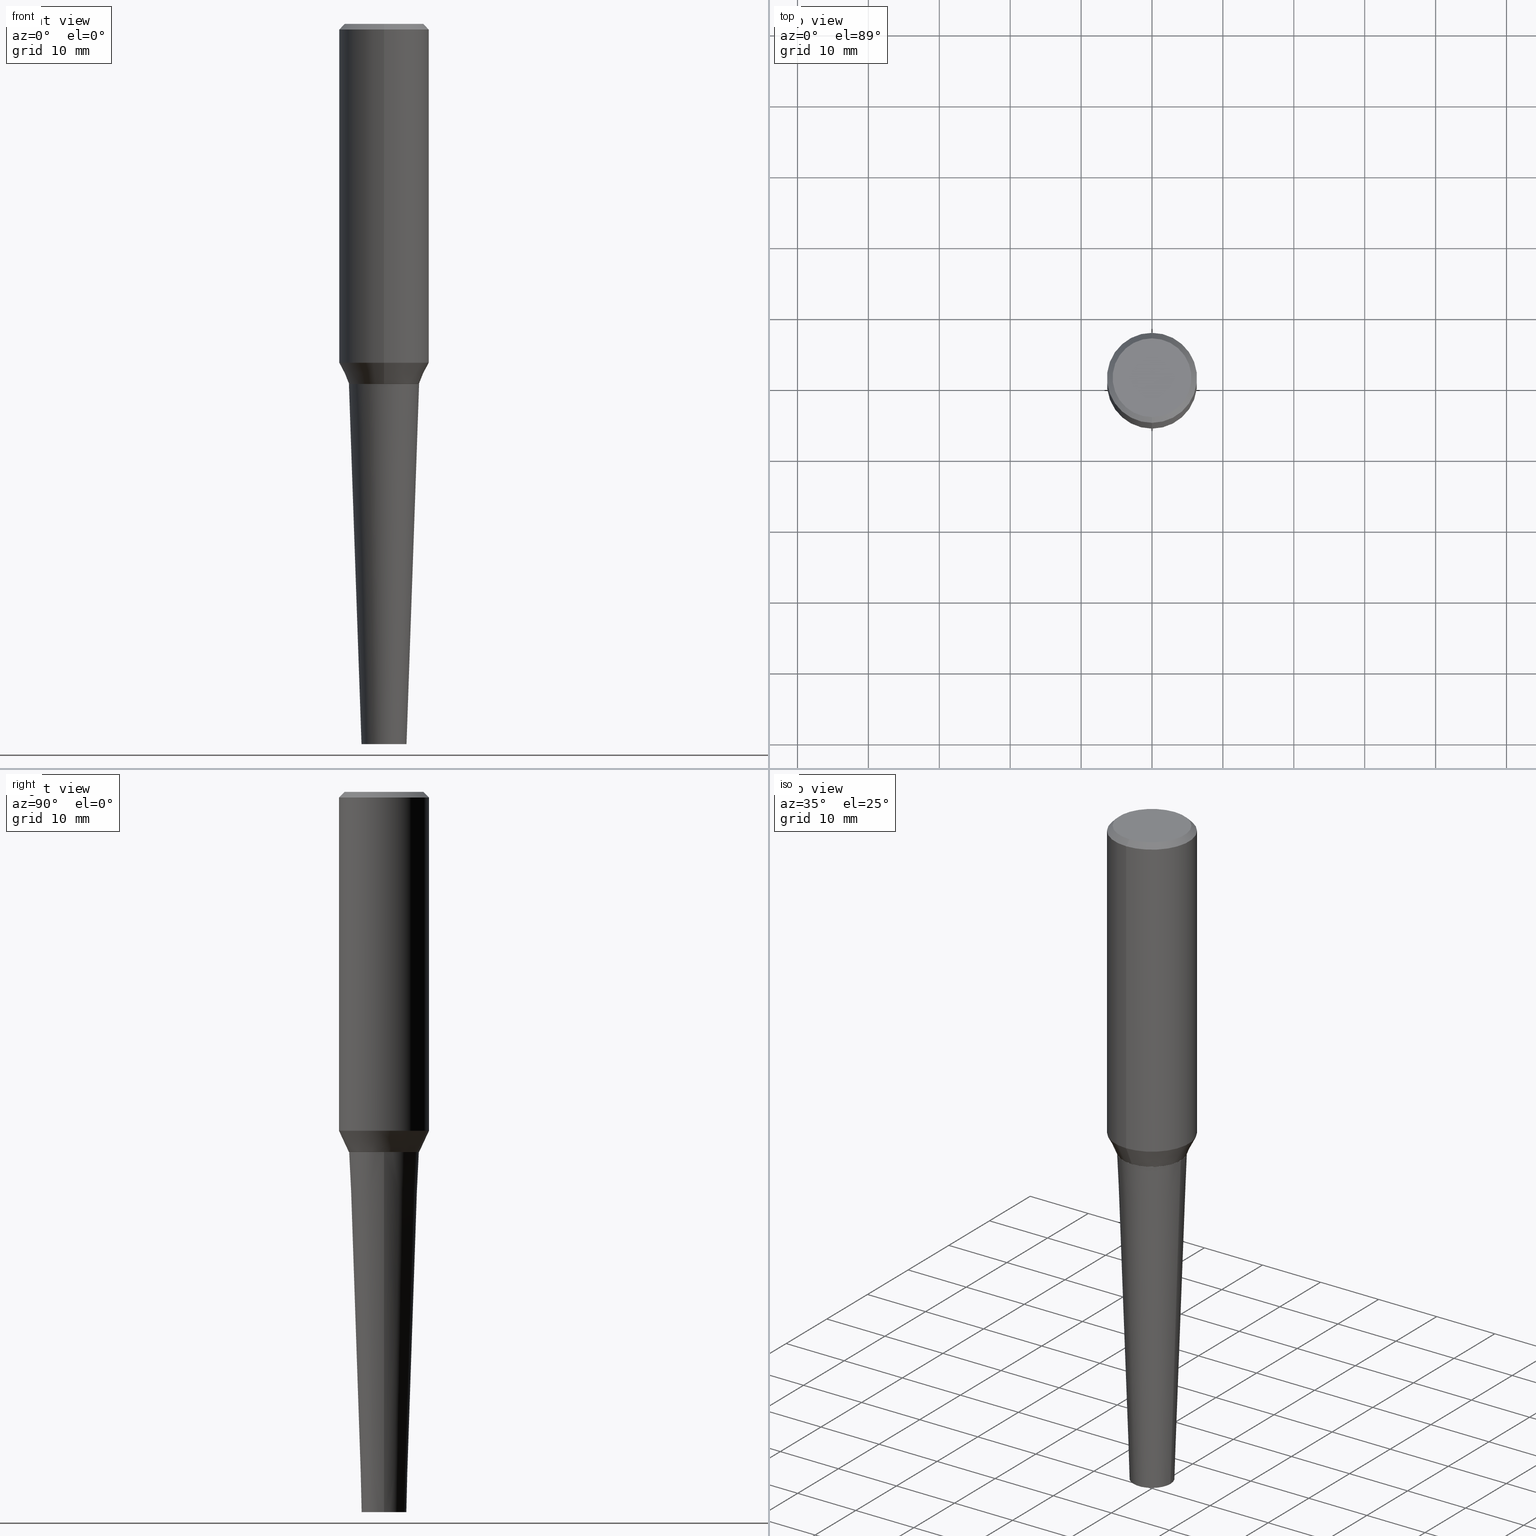
[diagram: canonical four-view strip — front | top / right | iso, engineering-drawing reading convention]
A machine part, canonical four-view strip (front | top / right | iso — engineering-drawing reading convention). The complete STEP part file that produces these views, byte-faithful:
ISO-10303-21;
HEADER;
FILE_DESCRIPTION (( 'STEP AP203' ),
    '1' );
FILE_NAME ('32334.STEP',
    '2024-03-04T15:07:34',
    ( '' ),
    ( '' ),
    'SwSTEP 2.0',
    'SolidWorks 2023',
    '' );
FILE_SCHEMA (( 'CONFIG_CONTROL_DESIGN' ));
ENDSEC;

DATA;
#1 = VERTEX_POINT ( 'NONE', #354 ) ;
#2 = DIRECTION ( 'NONE',  ( -6.982962677686265133E-15, -1.000000000000000000, 3.192847342595101412E-15 ) ) ;
#3 = DIRECTION ( 'NONE',  ( -6.982962677686265922E-15, -1.000000000000000000, 2.797900717145328369E-15 ) ) ;
#4 = ORIENTED_EDGE ( 'NONE', *, *, #226, .F. ) ;
#5 = AXIS2_PLACEMENT_3D ( 'NONE', #361, #141, #205 ) ;
#6 = CARTESIAN_POINT ( 'NONE',  ( 4.890937612370273194E-29, -6.982962677686291165E-15, -2.000000000000000000 ) ) ;
#7 = EDGE_CURVE ( 'NONE', #1, #223, #412, .T. ) ;
#8 = FACE_OUTER_BOUND ( 'NONE', #340, .T. ) ;
#9 = DIRECTION ( 'NONE',  ( -2.651392540956904653E-29, 3.196586830198859134E-15, 1.000000000000000000 ) ) ;
#10 = SECURITY_CLASSIFICATION ( '', '', #189 ) ;
#11 = PLANE ( 'NONE',  #324 ) ;
#12 =( CONVERSION_BASED_UNIT ( 'INCH', #35 ) LENGTH_UNIT ( ) NAMED_UNIT ( #233 ) );
#13 = ORIENTED_EDGE ( 'NONE', *, *, #400, .T. ) ;
#14 = EDGE_CURVE ( 'NONE', #368, #1, #36, .T. ) ;
#15 = CONICAL_SURFACE ( 'NONE', #127, 0.1250000000000000555, 0.03490658503987938838 ) ;
#16 = PERSON_AND_ORGANIZATION ( #87, #344 ) ;
#17 = EDGE_LOOP ( 'NONE', ( #163, #249 ) ) ;
#18 = APPROVAL ( #257, 'UNSPECIFIED' ) ;
#19 = ADVANCED_FACE ( 'NONE', ( #149 ), #254, .T. ) ;
#20 = PERSON_AND_ORGANIZATION ( #87, #344 ) ;
#21 = ORIENTED_EDGE ( 'NONE', *, *, #251, .T. ) ;
#22 = ADVANCED_FACE ( 'NONE', ( #90 ), #15, .T. ) ;
#23 = DIRECTION ( 'NONE',  ( -2.651392540956904653E-29, 3.196586830198859134E-15, 1.000000000000000000 ) ) ;
#24 = ORIENTED_EDGE ( 'NONE', *, *, #269, .F. ) ;
#25 = COORDINATED_UNIVERSAL_TIME_OFFSET ( 5, 0, .BEHIND. ) ;
#26 = CYLINDRICAL_SURFACE ( 'NONE', #170, 0.2500000000000002220 ) ;
#27 = EDGE_LOOP ( 'NONE', ( #252, #380, #158, #4 ) ) ;
#28 = CALENDAR_DATE ( 2024, 4, 3 ) ;
#29 = LINE ( 'NONE', #102, #58 ) ;
#30 = AXIS2_PLACEMENT_3D ( 'NONE', #111, #389, #73 ) ;
#31 = ORIENTED_EDGE ( 'NONE', *, *, #271, .T. ) ;
#32 = DIRECTION ( 'NONE',  ( -6.982962677686265922E-15, -1.000000000000000000, 3.196586830198859529E-15 ) ) ;
#33 = CARTESIAN_POINT ( 'NONE',  ( 1.360571194784651347E-15, 0.1948415389834741440, -2.000000000000000444 ) ) ;
#34 = ORIENTED_EDGE ( 'NONE', *, *, #7, .T. ) ;
#35 = LENGTH_MEASURE_WITH_UNIT ( LENGTH_MEASURE( 0.02539999999999999897 ), #144 );
#36 = LINE ( 'NONE', #360, #374 ) ;
#37 = CC_DESIGN_SECURITY_CLASSIFICATION ( #10, ( #38 ) ) ;
#38 = PRODUCT_DEFINITION_FORMATION_WITH_SPECIFIED_SOURCE ( 'ANY', '', #49, .NOT_KNOWN. ) ;
#39 = DIRECTION ( 'NONE',  ( 1.000000000000000000, -6.982962677686265922E-15, 0.000000000000000000 ) ) ;
#40 = CARTESIAN_POINT ( 'NONE',  ( 1.776356839400248295E-15, 0.2499999999999997224, -7.800228530168773250E-16 ) ) ;
#41 = CARTESIAN_POINT ( 'NONE',  ( -3.397982428467408395E-30, -4.866104238714468673E-16, 2.086207603607217046E-17 ) ) ;
#42 = CIRCLE ( 'NONE', #234, 0.1952784083383446168 ) ;
#43 = CONICAL_SURFACE ( 'NONE', #30, 0.2500000000000004996, 0.7853981633974466137 ) ;
#44 = PERSON_AND_ORGANIZATION ( #87, #344 ) ;
#45 = COORDINATED_UNIVERSAL_TIME_OFFSET ( 5, 0, .BEHIND. ) ;
#46 = CARTESIAN_POINT ( 'NONE',  ( 4.962986839067068957E-29, -6.879784084269165333E-15, -2.000000000000000000 ) ) ;
#47 = ADVANCED_FACE ( 'NONE', ( #402 ), #123, .T. ) ;
#48 = LOCAL_TIME ( 10, 7, 34.00000000000000000, #320 ) ;
#49 = PRODUCT ( '32334', '32334', '', ( #413 ) ) ;
#50 = APPROVAL_DATE_TIME ( #96, #18 ) ;
#51 = CARTESIAN_POINT ( 'NONE',  ( 4.962986839067068957E-29, -6.879784084269165333E-15, -2.000000000000000000 ) ) ;
#52 = VERTEX_POINT ( 'NONE', #339 ) ;
#53 = EDGE_CURVE ( 'NONE', #1, #68, #42, .T. ) ;
#54 = DIRECTION ( 'NONE',  ( -6.982962677686266711E-15, -1.000000000000000000, 2.811388659319477661E-15 ) ) ;
#55 = EDGE_LOOP ( 'NONE', ( #13, #88, #108, #342 ) ) ;
#56 = ADVANCED_FACE ( 'NONE', ( #175 ), #84, .T. ) ;
#57 = ORIENTED_EDGE ( 'NONE', *, *, #416, .T. ) ;
#58 = VECTOR ( 'NONE', #346, 39.37007874015748143 ) ;
#59 = AXIS2_PLACEMENT_3D ( 'NONE', #41, #169, #238 ) ;
#60 = DIRECTION ( 'NONE',  ( -2.651392540956904653E-29, 3.196586830198859134E-15, 1.000000000000000000 ) ) ;
#61 = ORIENTED_EDGE ( 'NONE', *, *, #258, .F. ) ;
#62 = CALENDAR_DATE ( 2024, 4, 3 ) ;
#63 = LINE ( 'NONE', #190, #290 ) ;
#64 = PERSON_AND_ORGANIZATION_ROLE ( 'creator' ) ;
#65 = DIRECTION ( 'NONE',  ( -6.982962677686265922E-15, -1.000000000000000000, 3.278217592397117045E-15 ) ) ;
#66 = DIRECTION ( 'NONE',  ( -2.651392540956904092E-29, 3.196586830198859529E-15, 1.000000000000000000 ) ) ;
#67 = CC_DESIGN_APPROVAL ( #18, ( #105 ) ) ;
#68 = VERTEX_POINT ( 'NONE', #182 ) ;
#69 = DIRECTION ( 'NONE',  ( -2.651392540956904653E-29, 3.196586830198859134E-15, 1.000000000000000000 ) ) ;
#70 = EDGE_LOOP ( 'NONE', ( #268, #406, #294, #323 ) ) ;
#71 = FACE_OUTER_BOUND ( 'NONE', #245, .T. ) ;
#72 = DIRECTION ( 'NONE',  ( -2.651392540956904653E-29, 3.196586830198859134E-15, 1.000000000000000000 ) ) ;
#73 = DIRECTION ( 'NONE',  ( 6.982962677686265133E-15, 1.000000000000000000, -3.192847342595101412E-15 ) ) ;
#74 = FACE_OUTER_BOUND ( 'NONE', #98, .T. ) ;
#75 = CC_DESIGN_PERSON_AND_ORGANIZATION_ASSIGNMENT ( #44, #64, ( #105 ) ) ;
#76 = DIRECTION ( 'NONE',  ( 1.000000000000000000, -6.982962677686275388E-15, 0.000000000000000000 ) ) ;
#77 = AXIS2_PLACEMENT_3D ( 'NONE', #264, #316, #295 ) ;
#78 = UNCERTAINTY_MEASURE_WITH_UNIT (LENGTH_MEASURE( 1.000000000000000082E-05 ), #12, 'distance_accuracy_value', 'NONE');
#79 = PERSON_AND_ORGANIZATION ( #87, #344 ) ;
#80 = DIRECTION ( 'NONE',  ( 1.000000000000000000, -6.982962677686275388E-15, 0.000000000000000000 ) ) ;
#81 = ORIENTED_EDGE ( 'NONE', *, *, #14, .T. ) ;
#82 = CARTESIAN_POINT ( 'NONE',  ( 4.960502830647732035E-29, -6.876789300027791959E-15, -1.999063130645136521 ) ) ;
#83 = ORIENTED_EDGE ( 'NONE', *, *, #166, .T. ) ;
#84 = CONICAL_SURFACE ( 'NONE', #241, 0.1943415389834809992, 0.7853981633975030130 ) ;
#85 = AXIS2_PLACEMENT_3D ( 'NONE', #274, #9, #114 ) ;
#86 = DIRECTION ( 'NONE',  ( 2.438088387897960049E-29, -3.491481338843145188E-15, -1.000000000000000000 ) ) ;
#87 = PERSON ( 'UNSPECIFIED', 'UNSPECIFIED', 'UNSPECIFIED', ('UNSPECIFIED'), ('UNSPECIFIED'), ('UNSPECIFIED') ) ;
#88 = ORIENTED_EDGE ( 'NONE', *, *, #168, .T. ) ;
#89 = ORIENTED_EDGE ( 'NONE', *, *, #168, .F. ) ;
#90 = FACE_OUTER_BOUND ( 'NONE', #153, .T. ) ;
#91 = VERTEX_POINT ( 'NONE', #312 ) ;
#92 = PERSON_AND_ORGANIZATION ( #87, #344 ) ;
#93 = AXIS2_PLACEMENT_3D ( 'NONE', #200, #72, #140 ) ;
#94 = FACE_OUTER_BOUND ( 'NONE', #100, .T. ) ;
#95 = VERTEX_POINT ( 'NONE', #97 ) ;
#96 = DATE_AND_TIME ( #211, #137 ) ;
#97 = CARTESIAN_POINT ( 'NONE',  ( 1.384208116383829866E-15, 0.1943415389834741436, -2.000000000000000444 ) ) ;
#98 = EDGE_LOOP ( 'NONE', ( #307, #298 ) ) ;
#99 = PLANE ( 'NONE',  #164 ) ;
#100 = EDGE_LOOP ( 'NONE', ( #216, #399 ) ) ;
#101 = AXIS2_PLACEMENT_3D ( 'NONE', #372, #86, #367 ) ;
#102 = CARTESIAN_POINT ( 'NONE',  ( -0.1250000000000000555, -1.307774693567245552E-14, -4.000000000000000000 ) ) ;
#103 = AXIS2_PLACEMENT_3D ( 'NONE', #6, #236, #278 ) ;
#104 = ORIENTED_EDGE ( 'NONE', *, *, #7, .F. ) ;
#105 = PRODUCT_DEFINITION ( 'UNKNOWN', '', #38, #275 ) ;
#106 = EDGE_CURVE ( 'NONE', #223, #124, #134, .T. ) ;
#107 = DIRECTION ( 'NONE',  ( 6.982962677686265133E-15, 1.000000000000000000, -3.192847342595101412E-15 ) ) ;
#108 = ORIENTED_EDGE ( 'NONE', *, *, #53, .F. ) ;
#109 = MANIFOLD_SOLID_BREP ( 'Body-Move/Copy2[1]', #357 ) ;
#110 = DIRECTION ( 'NONE',  ( -2.445468806185136597E-29, 3.491481338843145583E-15, 1.000000000000000000 ) ) ;
#111 = CARTESIAN_POINT ( 'NONE',  ( -2.569422259418371487E-30, -5.865037623151615850E-16, -0.03125000000000012490 ) ) ;
#112 = AXIS2_PLACEMENT_3D ( 'NONE', #410, #375, #327 ) ;
#113 = AXIS2_PLACEMENT_3D ( 'NONE', #355, #204, #39 ) ;
#114 = DIRECTION ( 'NONE',  ( -6.982962677686266711E-15, -1.000000000000000000, 2.811388659319477661E-15 ) ) ;
#115 = EDGE_CURVE ( 'NONE', #386, #191, #201, .T. ) ;
#116 = FACE_OUTER_BOUND ( 'NONE', #199, .T. ) ;
#117 = CARTESIAN_POINT ( 'NONE',  ( 0.000000000000000000, 0.000000000000000000, 0.000000000000000000 ) ) ;
#118 = APPROVAL_ROLE ( '' ) ;
#119 = DIRECTION ( 'NONE',  ( -2.445468806185136597E-29, 3.491481338843145583E-15, 1.000000000000000000 ) ) ;
#120 = ADVANCED_FACE ( 'NONE', ( #94 ), #387, .F. ) ;
#121 = ORIENTED_EDGE ( 'NONE', *, *, #226, .T. ) ;
#122 = CONICAL_SURFACE ( 'NONE', #5, 0.1250000000000000555, 0.03490658503987938838 ) ;
#123 = PLANE ( 'NONE',  #101 ) ;
#124 = VERTEX_POINT ( 'NONE', #198 ) ;
#125 = DIRECTION ( 'NONE',  ( -2.651392540956904653E-29, 3.196586830198859134E-15, 1.000000000000000000 ) ) ;
#126 = PRODUCT_DEFINITION_SHAPE ( 'NONE', 'NONE',  #105 ) ;
#127 = AXIS2_PLACEMENT_3D ( 'NONE', #407, #119, #80 ) ;
#128 = CC_DESIGN_DATE_AND_TIME_ASSIGNMENT ( #409, #145, ( #10 ) ) ;
#129 =( GEOMETRIC_REPRESENTATION_CONTEXT ( 3 ) GLOBAL_UNCERTAINTY_ASSIGNED_CONTEXT ( ( #78 ) ) GLOBAL_UNIT_ASSIGNED_CONTEXT ( ( #12, #288, #308 ) ) REPRESENTATION_CONTEXT ( 'NONE', 'WORKASPACE' ) );
#130 = CYLINDRICAL_SURFACE ( 'NONE', #112, 0.2500000000000002220 ) ;
#131 = CARTESIAN_POINT ( 'NONE',  ( -2.569422259418371487E-30, -5.865037623151615850E-16, -0.03125000000000012490 ) ) ;
#132 = EDGE_LOOP ( 'NONE', ( #403, #347 ) ) ;
#133 = EDGE_CURVE ( 'NONE', #287, #223, #194, .T. ) ;
#134 = LINE ( 'NONE', #321, #155 ) ;
#135 = ADVANCED_FACE ( 'NONE', ( #384 ), #130, .T. ) ;
#136 = LINE ( 'NONE', #353, #142 ) ;
#137 = LOCAL_TIME ( 10, 7, 34.00000000000000000, #25 ) ;
#138 = LINE ( 'NONE', #165, #214 ) ;
#139 = APPLICATION_CONTEXT ( 'configuration controlled 3d designs of mechanical parts and assemblies' ) ;
#140 = DIRECTION ( 'NONE',  ( -6.982962677686265922E-15, -1.000000000000000000, 2.797900717145328369E-15 ) ) ;
#141 = DIRECTION ( 'NONE',  ( -2.445468806185136597E-29, 3.491481338843145583E-15, 1.000000000000000000 ) ) ;
#142 = VECTOR ( 'NONE', #260, 39.37007874015748854 ) ;
#143 = DIRECTION ( 'NONE',  ( 2.651392540956904092E-29, -3.196586830198859529E-15, -1.000000000000000000 ) ) ;
#144 =( LENGTH_UNIT ( ) NAMED_UNIT ( * ) SI_UNIT ( $, .METRE. ) );
#145 = DATE_TIME_ROLE ( 'classification_date' ) ;
#146 = PERSON_AND_ORGANIZATION_ROLE ( 'design_supplier' ) ;
#147 = CC_DESIGN_PERSON_AND_ORGANIZATION_ASSIGNMENT ( #79, #146, ( #38 ) ) ;
#148 = CONICAL_SURFACE ( 'NONE', #396, 0.2500000000000004996, 0.7853981633974466137 ) ;
#149 = FACE_OUTER_BOUND ( 'NONE', #255, .T. ) ;
#150 = ORIENTED_EDGE ( 'NONE', *, *, #133, .F. ) ;
#151 = DIRECTION ( 'NONE',  ( -6.982962677686265133E-15, -1.000000000000000000, 3.192847342595101412E-15 ) ) ;
#152 = FACE_OUTER_BOUND ( 'NONE', #70, .T. ) ;
#153 = EDGE_LOOP ( 'NONE', ( #161, #31, #227, #366 ) ) ;
#154 = APPROVAL_ROLE ( '' ) ;
#155 = VECTOR ( 'NONE', #222, 39.37007874015748143 ) ;
#156 = APPLICATION_CONTEXT ( 'configuration controlled 3d designs of mechanical parts and assemblies' ) ;
#157 = DIRECTION ( 'NONE',  ( 5.024295867788335336E-15, 0.7071067811865884289, 0.7071067811865066055 ) ) ;
#158 = ORIENTED_EDGE ( 'NONE', *, *, #258, .T. ) ;
#159 = ADVANCED_BREP_SHAPE_REPRESENTATION ( '32334', ( #109, #244, #358 ), #129 ) ;
#160 = CARTESIAN_POINT ( 'NONE',  ( 4.649359709955567385E-29, -6.501667175880684624E-15, -1.881712298625419111 ) ) ;
#161 = ORIENTED_EDGE ( 'NONE', *, *, #166, .F. ) ;
#162 = DIRECTION ( 'NONE',  ( -2.651392540956904653E-29, 3.196586830198859134E-15, 1.000000000000000000 ) ) ;
#163 = ORIENTED_EDGE ( 'NONE', *, *, #416, .F. ) ;
#164 = AXIS2_PLACEMENT_3D ( 'NONE', #350, #66, #32 ) ;
#165 = CARTESIAN_POINT ( 'NONE',  ( 0.1250000000000000555, -1.483879569008336725E-14, -4.000000000000000000 ) ) ;
#166 = EDGE_CURVE ( 'NONE', #52, #265, #29, .T. ) ;
#167 = CARTESIAN_POINT ( 'NONE',  ( 4.962986839067068957E-29, -6.879784084269165333E-15, -2.000000000000000000 ) ) ;
#168 = EDGE_CURVE ( 'NONE', #95, #68, #63, .T. ) ;
#169 = DIRECTION ( 'NONE',  ( -2.651392540956904653E-29, 3.196586830198859134E-15, 1.000000000000000000 ) ) ;
#170 = AXIS2_PLACEMENT_3D ( 'NONE', #218, #415, #325 ) ;
#171 = APPROVAL_PERSON_ORGANIZATION ( #92, #371, #118 ) ;
#172 = EDGE_CURVE ( 'NONE', #181, #124, #212, .T. ) ;
#173 = DIRECTION ( 'NONE',  ( -2.445468806185136597E-29, 3.491481338843145583E-15, 1.000000000000000000 ) ) ;
#174 = APPROVAL_DATE_TIME ( #243, #371 ) ;
#175 = FACE_OUTER_BOUND ( 'NONE', #55, .T. ) ;
#176 = CALENDAR_DATE ( 2024, 4, 3 ) ;
#177 = DIRECTION ( 'NONE',  ( -6.982962677686266711E-15, -1.000000000000000000, 2.811388659319477661E-15 ) ) ;
#178 = LOCAL_TIME ( 10, 7, 34.00000000000000000, #310 ) ;
#179 = DATE_TIME_ROLE ( 'creation_date' ) ;
#180 = DIRECTION ( 'NONE',  ( -2.651392540956904653E-29, 3.196586830198859134E-15, 1.000000000000000000 ) ) ;
#181 = VERTEX_POINT ( 'NONE', #230 ) ;
#182 = CARTESIAN_POINT ( 'NONE',  ( 1.387536544956102545E-15, 0.1952784083383376779, -1.999063130645136965 ) ) ;
#183 = ORIENTED_EDGE ( 'NONE', *, *, #106, .F. ) ;
#184 = VECTOR ( 'NONE', #188, 39.37007874015748143 ) ;
#185 = CIRCLE ( 'NONE', #77, 0.1952784083383446168 ) ;
#186 = CC_DESIGN_PERSON_AND_ORGANIZATION_ASSIGNMENT ( #20, #365, ( #38 ) ) ;
#187 = DIRECTION ( 'NONE',  ( -1.000000000000000000, 6.982962677686265922E-15, -4.876176775795935793E-29 ) ) ;
#188 = DIRECTION ( 'NONE',  ( -2.951127548643988277E-15, -0.4226182617406985531, 0.9063077870366502697 ) ) ;
#189 = SECURITY_CLASSIFICATION_LEVEL ( 'unclassified' ) ;
#190 = CARTESIAN_POINT ( 'NONE',  ( 1.380879687811556990E-15, 0.1943415389834741436, -2.000000000000000444 ) ) ;
#191 = VERTEX_POINT ( 'NONE', #253 ) ;
#192 = PERSON_AND_ORGANIZATION_ROLE ( 'classification_officer' ) ;
#193 = DIRECTION ( 'NONE',  ( -6.982962677686265133E-15, -1.000000000000000000, 3.196586830198859134E-15 ) ) ;
#194 = CIRCLE ( 'NONE', #414, 0.2499999999999999167 ) ;
#195 = CIRCLE ( 'NONE', #314, 0.1250000000000000555 ) ;
#196 = CARTESIAN_POINT ( 'NONE',  ( -3.397982428467408395E-30, -4.866104238714468673E-16, 2.086207603607217046E-17 ) ) ;
#197 = CC_DESIGN_PERSON_AND_ORGANIZATION_ASSIGNMENT ( #246, #348, ( #49 ) ) ;
#198 = CARTESIAN_POINT ( 'NONE',  ( -1.715124499442888610E-15, -0.2500000000000010547, -0.03124999999999933040 ) ) ;
#199 = EDGE_LOOP ( 'NONE', ( #57, #83, #317, #383 ) ) ;
#200 = CARTESIAN_POINT ( 'NONE',  ( 4.960502830647732035E-29, -6.876789300027791959E-15, -1.999063130645136521 ) ) ;
#201 = CIRCLE ( 'NONE', #390, 0.2187500000000004441 ) ;
#202 = AXIS2_PLACEMENT_3D ( 'NONE', #362, #173, #76 ) ;
#203 = LINE ( 'NONE', #301, #376 ) ;
#204 = DIRECTION ( 'NONE',  ( -2.445468806185136597E-29, 3.491481338843145583E-15, 1.000000000000000000 ) ) ;
#205 = DIRECTION ( 'NONE',  ( 1.000000000000000000, -6.982962677686275388E-15, 0.000000000000000000 ) ) ;
#206 = DIRECTION ( 'NONE',  ( 2.651392540956904653E-29, -3.196586830198859134E-15, -1.000000000000000000 ) ) ;
#207 = CIRCLE ( 'NONE', #299, 0.2500000000000004996 ) ;
#208 = APPLICATION_PROTOCOL_DEFINITION ( 'international standard', 'config_control_design', 1994, #156 ) ;
#209 = PERSON_AND_ORGANIZATION ( #87, #344 ) ;
#210 = ORIENTED_EDGE ( 'NONE', *, *, #213, .T. ) ;
#211 = CALENDAR_DATE ( 2024, 4, 3 ) ;
#212 = CIRCLE ( 'NONE', #322, 0.2500000000000004996 ) ;
#213 = EDGE_CURVE ( 'NONE', #68, #287, #136, .T. ) ;
#214 = VECTOR ( 'NONE', #270, 39.37007874015748143 ) ;
#215 = ORIENTED_EDGE ( 'NONE', *, *, #405, .T. ) ;
#216 = ORIENTED_EDGE ( 'NONE', *, *, #304, .T. ) ;
#217 = CC_DESIGN_PERSON_AND_ORGANIZATION_ASSIGNMENT ( #16, #192, ( #10 ) ) ;
#218 = CARTESIAN_POINT ( 'NONE',  ( -3.397982428467408395E-30, -4.866104238714468673E-16, 1.912385453283800096E-17 ) ) ;
#219 = LOCAL_TIME ( 10, 7, 34.00000000000000000, #45 ) ;
#220 = APPROVAL_PERSON_ORGANIZATION ( #279, #18, #378 ) ;
#221 = APPROVAL_STATUS ( 'not_yet_approved' ) ;
#222 = DIRECTION ( 'NONE',  ( -2.651392540956904653E-29, 3.196586830198859529E-15, 1.000000000000000000 ) ) ;
#223 = VERTEX_POINT ( 'NONE', #379 ) ;
#224 = DIRECTION ( 'NONE',  ( -6.982962677686265922E-15, -1.000000000000000000, 3.278217592397117045E-15 ) ) ;
#225 = LINE ( 'NONE', #293, #385 ) ;
#226 = EDGE_CURVE ( 'NONE', #191, #181, #225, .T. ) ;
#227 = ORIENTED_EDGE ( 'NONE', *, *, #335, .T. ) ;
#228 = AXIS2_PLACEMENT_3D ( 'NONE', #46, #370, #177 ) ;
#229 = AXIS2_PLACEMENT_3D ( 'NONE', #262, #69, #3 ) ;
#230 = CARTESIAN_POINT ( 'NONE',  ( 1.745740669421567269E-15, 0.2499999999999998890, -0.03125000000000092287 ) ) ;
#231 = ADVANCED_FACE ( 'NONE', ( #152 ), #26, .T. ) ;
#232 = CARTESIAN_POINT ( 'NONE',  ( 1.776356839400272947E-15, 0.2499999999999934497, -1.881712298625419999 ) ) ;
#233 = DIMENSIONAL_EXPONENTS ( 1.000000000000000000, 0.000000000000000000, 0.000000000000000000, 0.000000000000000000, 0.000000000000000000, 0.000000000000000000, 0.000000000000000000 ) ;
#234 = AXIS2_PLACEMENT_3D ( 'NONE', #82, #281, #250 ) ;
#235 = LOCAL_TIME ( 10, 7, 34.00000000000000000, #397 ) ;
#236 = DIRECTION ( 'NONE',  ( -2.445468806185136597E-29, 3.491481338843145583E-15, 1.000000000000000000 ) ) ;
#237 = DIRECTION ( 'NONE',  ( -2.651392540956904653E-29, 3.196586830198859529E-15, 1.000000000000000000 ) ) ;
#238 = DIRECTION ( 'NONE',  ( -6.982962677686265133E-15, -1.000000000000000000, 3.196586830198859134E-15 ) ) ;
#239 = CC_DESIGN_DATE_AND_TIME_ASSIGNMENT ( #318, #179, ( #105 ) ) ;
#240 = APPROVAL_DATE_TIME ( #395, #331 ) ;
#241 = AXIS2_PLACEMENT_3D ( 'NONE', #51, #180, #54 ) ;
#242 = AXIS2_PLACEMENT_3D ( 'NONE', #167, #276, #303 ) ;
#243 = DATE_AND_TIME ( #62, #178 ) ;
#244 = MANIFOLD_SOLID_BREP ( 'Body-Move/Copy2[2]', #369 ) ;
#245 = EDGE_LOOP ( 'NONE', ( #311, #404, #121, #247 ) ) ;
#246 = PERSON_AND_ORGANIZATION ( #87, #344 ) ;
#247 = ORIENTED_EDGE ( 'NONE', *, *, #172, .T. ) ;
#248 = APPROVAL_PERSON_ORGANIZATION ( #209, #331, #154 ) ;
#249 = ORIENTED_EDGE ( 'NONE', *, *, #271, .F. ) ;
#250 = DIRECTION ( 'NONE',  ( -6.982962677686265922E-15, -1.000000000000000000, 2.797900717145328369E-15 ) ) ;
#251 = EDGE_CURVE ( 'NONE', #223, #287, #351, .T. ) ;
#252 = ORIENTED_EDGE ( 'NONE', *, *, #115, .F. ) ;
#253 = CARTESIAN_POINT ( 'NONE',  ( 1.636631877582718760E-15, 0.2187499999999999445, -6.783912930699296488E-16 ) ) ;
#254 = CONICAL_SURFACE ( 'NONE', #228, 0.1943415389834809992, 0.7853981633975030130 ) ;
#255 = EDGE_LOOP ( 'NONE', ( #89, #215, #81, #24 ) ) ;
#256 = CIRCLE ( 'NONE', #85, 0.1943415389834809992 ) ;
#257 = APPROVAL_STATUS ( 'not_yet_approved' ) ;
#258 = EDGE_CURVE ( 'NONE', #124, #181, #207, .T. ) ;
#259 = ADVANCED_FACE ( 'NONE', ( #297 ), #328, .T. ) ;
#260 = DIRECTION ( 'NONE',  ( 3.002883358794135962E-15, 0.4226182617407042708, 0.9063077870366476052 ) ) ;
#261 = ADVANCED_FACE ( 'NONE', ( #382 ), #99, .F. ) ;
#262 = CARTESIAN_POINT ( 'NONE',  ( 4.960502830647732035E-29, -6.876789300027791959E-15, -1.999063130645136521 ) ) ;
#263 = ORIENTED_EDGE ( 'NONE', *, *, #53, .T. ) ;
#264 = CARTESIAN_POINT ( 'NONE',  ( 4.960502830647732035E-29, -6.876789300027791959E-15, -1.999063130645136521 ) ) ;
#265 = VERTEX_POINT ( 'NONE', #267 ) ;
#266 = CIRCLE ( 'NONE', #202, 0.1250000000000000555 ) ;
#267 = CARTESIAN_POINT ( 'NONE',  ( -0.1948415389834811107, -5.598530276195981594E-15, -2.000000000000000000 ) ) ;
#268 = ORIENTED_EDGE ( 'NONE', *, *, #394, .F. ) ;
#269 = EDGE_CURVE ( 'NONE', #68, #1, #185, .T. ) ;
#270 = DIRECTION ( 'NONE',  ( 0.03489949670249377356, 3.245652539804642670E-15, 0.9993908270190959842 ) ) ;
#271 = EDGE_CURVE ( 'NONE', #52, #373, #195, .T. ) ;
#272 = CARTESIAN_POINT ( 'NONE',  ( -2.569422259418371487E-30, -5.865037623151615850E-16, -0.03125000000000012490 ) ) ;
#273 = CIRCLE ( 'NONE', #242, 0.1943415389834809992 ) ;
#274 = CARTESIAN_POINT ( 'NONE',  ( 4.962986839067068957E-29, -6.879784084269165333E-15, -2.000000000000000000 ) ) ;
#275 = DESIGN_CONTEXT ( 'detailed design', #156, 'design' ) ;
#276 = DIRECTION ( 'NONE',  ( -2.651392540956904653E-29, 3.196586830198859134E-15, 1.000000000000000000 ) ) ;
#277 = ADVANCED_FACE ( 'NONE', ( #8 ), #300, .T. ) ;
#278 = DIRECTION ( 'NONE',  ( 1.000000000000000000, -6.982962677686265922E-15, 0.000000000000000000 ) ) ;
#279 = PERSON_AND_ORGANIZATION ( #87, #344 ) ;
#280 = APPLICATION_PROTOCOL_DEFINITION ( 'international standard', 'config_control_design', 1994, #139 ) ;
#281 = DIRECTION ( 'NONE',  ( -2.651392540956904653E-29, 3.196586830198859134E-15, 1.000000000000000000 ) ) ;
#282 = AXIS2_PLACEMENT_3D ( 'NONE', #349, #23, #65 ) ;
#283 = CIRCLE ( 'NONE', #59, 0.2187500000000004441 ) ;
#284 = EDGE_LOOP ( 'NONE', ( #263, #210, #352, #104 ) ) ;
#285 = ORIENTED_EDGE ( 'NONE', *, *, #394, .T. ) ;
#286 = DIRECTION ( 'NONE',  ( 2.438088387897960049E-29, -3.491481338843145188E-15, -1.000000000000000000 ) ) ;
#287 = VERTEX_POINT ( 'NONE', #232 ) ;
#288 =( NAMED_UNIT ( * ) PLANE_ANGLE_UNIT ( ) SI_UNIT ( $, .RADIAN. ) );
#289 = DIRECTION ( 'NONE',  ( -2.651392540956904653E-29, 3.196586830198859134E-15, 1.000000000000000000 ) ) ;
#290 = VECTOR ( 'NONE', #157, 39.37007874015748143 ) ;
#291 = CC_DESIGN_APPROVAL ( #331, ( #10 ) ) ;
#292 = ADVANCED_FACE ( 'NONE', ( #302 ), #148, .T. ) ;
#293 = CARTESIAN_POINT ( 'NONE',  ( 1.745740669421567269E-15, 0.2499999999999998890, -0.03125000000000092287 ) ) ;
#294 = ORIENTED_EDGE ( 'NONE', *, *, #106, .T. ) ;
#295 = DIRECTION ( 'NONE',  ( -6.982962677686265922E-15, -1.000000000000000000, 2.797900717145328369E-15 ) ) ;
#296 = ADVANCED_FACE ( 'NONE', ( #71 ), #43, .T. ) ;
#297 = FACE_OUTER_BOUND ( 'NONE', #284, .T. ) ;
#298 = ORIENTED_EDGE ( 'NONE', *, *, #115, .T. ) ;
#299 = AXIS2_PLACEMENT_3D ( 'NONE', #131, #162, #2 ) ;
#300 = CONICAL_SURFACE ( 'NONE', #93, 0.1952784083383446168, 0.4363323129985846038 ) ;
#301 = CARTESIAN_POINT ( 'NONE',  ( -1.715124499442888610E-15, -0.2500000000000010547, -0.03124999999999933040 ) ) ;
#302 = FACE_OUTER_BOUND ( 'NONE', #27, .T. ) ;
#303 = DIRECTION ( 'NONE',  ( -6.982962677686266711E-15, -1.000000000000000000, 2.811388659319477661E-15 ) ) ;
#304 = EDGE_CURVE ( 'NONE', #91, #265, #364, .T. ) ;
#305 = CC_DESIGN_APPROVAL ( #371, ( #38 ) ) ;
#306 = LINE ( 'NONE', #40, #309 ) ;
#307 = ORIENTED_EDGE ( 'NONE', *, *, #411, .T. ) ;
#308 =( NAMED_UNIT ( * ) SI_UNIT ( $, .STERADIAN. ) SOLID_ANGLE_UNIT ( ) );
#309 = VECTOR ( 'NONE', #237, 39.37007874015748143 ) ;
#310 = COORDINATED_UNIVERSAL_TIME_OFFSET ( 5, 0, .BEHIND. ) ;
#311 = ORIENTED_EDGE ( 'NONE', *, *, #313, .F. ) ;
#312 = CARTESIAN_POINT ( 'NONE',  ( 0.1948415389834811107, -8.343533872470893997E-15, -2.000000000000000000 ) ) ;
#313 = EDGE_CURVE ( 'NONE', #386, #124, #203, .T. ) ;
#314 = AXIS2_PLACEMENT_3D ( 'NONE', #388, #110, #332 ) ;
#315 = EDGE_LOOP ( 'NONE', ( #21, #285, #61, #183 ) ) ;
#316 = DIRECTION ( 'NONE',  ( -2.651392540956904653E-29, 3.196586830198859134E-15, 1.000000000000000000 ) ) ;
#317 = ORIENTED_EDGE ( 'NONE', *, *, #304, .F. ) ;
#318 = DATE_AND_TIME ( #176, #235 ) ;
#319 = DIRECTION ( 'NONE',  ( 4.937700262164540154E-15, 0.7071067811865440200, -0.7071067811865509034 ) ) ;
#320 = COORDINATED_UNIVERSAL_TIME_OFFSET ( 5, 0, .BEHIND. ) ;
#321 = CARTESIAN_POINT ( 'NONE',  ( -1.745740669421571411E-15, -0.2500000000000006661, 8.182705620825534255E-16 ) ) ;
#322 = AXIS2_PLACEMENT_3D ( 'NONE', #343, #125, #151 ) ;
#323 = ORIENTED_EDGE ( 'NONE', *, *, #172, .F. ) ;
#324 = AXIS2_PLACEMENT_3D ( 'NONE', #334, #143, #392 ) ;
#325 = DIRECTION ( 'NONE',  ( -6.982962677686265133E-15, -1.000000000000000000, 3.196586830198858740E-15 ) ) ;
#326 = EDGE_CURVE ( 'NONE', #265, #91, #391, .T. ) ;
#327 = DIRECTION ( 'NONE',  ( -6.982962677686265133E-15, -1.000000000000000000, 3.196586830198858740E-15 ) ) ;
#328 = CONICAL_SURFACE ( 'NONE', #229, 0.1952784083383446168, 0.4363323129985846038 ) ;
#329 = DIRECTION ( 'NONE',  ( -4.851104656540953231E-15, -0.7071067811865484609, -0.7071067811865464625 ) ) ;
#330 = CARTESIAN_POINT ( 'NONE',  ( -1.607929218227708626E-15, -0.2187500000000009159, 7.201154451420740328E-16 ) ) ;
#331 = APPROVAL ( #336, 'UNSPECIFIED' ) ;
#332 = DIRECTION ( 'NONE',  ( 1.000000000000000000, -6.982962677686275388E-15, 0.000000000000000000 ) ) ;
#333 = AXIS2_PLACEMENT_3D ( 'NONE', #33, #286, #187 ) ;
#334 = CARTESIAN_POINT ( 'NONE',  ( 1.527523085743870251E-15, 0.2187499999999999445, -6.792604038215468675E-16 ) ) ;
#335 = EDGE_CURVE ( 'NONE', #373, #91, #138, .T. ) ;
#336 = APPROVAL_STATUS ( 'not_yet_approved' ) ;
#337 = ORIENTED_EDGE ( 'NONE', *, *, #213, .F. ) ;
#338 = DIRECTION ( 'NONE',  ( 0.000000000000000000, 0.000000000000000000, 1.000000000000000000 ) ) ;
#339 = CARTESIAN_POINT ( 'NONE',  ( -0.1250000000000000555, -9.338138605934218952E-15, -4.000000000000000000 ) ) ;
#340 = EDGE_LOOP ( 'NONE', ( #337, #377, #34, #150 ) ) ;
#341 = ADVANCED_FACE ( 'NONE', ( #74 ), #11, .F. ) ;
#342 = ORIENTED_EDGE ( 'NONE', *, *, #14, .F. ) ;
#343 = CARTESIAN_POINT ( 'NONE',  ( -2.569422259418371487E-30, -5.865037623151615850E-16, -0.03125000000000012490 ) ) ;
#344 = ORGANIZATION ( 'UNSPECIFIED', 'UNSPECIFIED', '' ) ;
#345 = DIRECTION ( 'NONE',  ( 1.000000000000000000, 0.000000000000000000, 0.000000000000000000 ) ) ;
#346 = DIRECTION ( 'NONE',  ( -0.03489949670249377356, 3.737330261384597105E-15, 0.9993908270190959842 ) ) ;
#347 = ORIENTED_EDGE ( 'NONE', *, *, #405, .F. ) ;
#348 = PERSON_AND_ORGANIZATION_ROLE ( 'design_owner' ) ;
#349 = CARTESIAN_POINT ( 'NONE',  ( 4.649359709955567385E-29, -6.501667175880684624E-15, -1.881712298625419111 ) ) ;
#350 = CARTESIAN_POINT ( 'NONE',  ( 4.796625283644931188E-29, -7.118023300345371037E-15, -2.000000000000000000 ) ) ;
#351 = CIRCLE ( 'NONE', #282, 0.2499999999999999167 ) ;
#352 = ORIENTED_EDGE ( 'NONE', *, *, #251, .F. ) ;
#353 = CARTESIAN_POINT ( 'NONE',  ( 1.387536544956102742E-15, 0.1952784083383377611, -1.999063130645136965 ) ) ;
#354 = CARTESIAN_POINT ( 'NONE',  ( -1.363621837184589866E-15, -0.1952784083383515557, -1.999063130645135855 ) ) ;
#355 = CARTESIAN_POINT ( 'NONE',  ( 4.890937612370273194E-29, -6.982962677686291165E-15, -2.000000000000000000 ) ) ;
#356 = CARTESIAN_POINT ( 'NONE',  ( -1.363621837184589471E-15, -0.1952784083383514724, -1.999063130645135855 ) ) ;
#357 = CLOSED_SHELL ( 'NONE', ( #408, #47, #22, #120 ) ) ;
#358 = AXIS2_PLACEMENT_3D ( 'NONE', #117, #338, #345 ) ;
#359 = CARTESIAN_POINT ( 'NONE',  ( 0.1250000000000000555, -1.483879569008336725E-14, -4.000000000000000000 ) ) ;
#360 = CARTESIAN_POINT ( 'NONE',  ( -1.357079713445708549E-15, -0.1943415389834878548, -1.999999999999999334 ) ) ;
#361 = CARTESIAN_POINT ( 'NONE',  ( 9.781875224740546387E-29, -1.396592535537258233E-14, -4.000000000000000000 ) ) ;
#362 = CARTESIAN_POINT ( 'NONE',  ( 9.781875224740546387E-29, -1.396592535537258233E-14, -4.000000000000000000 ) ) ;
#363 = PRODUCT_RELATED_PRODUCT_CATEGORY ( 'detail', '', ( #49 ) ) ;
#364 = CIRCLE ( 'NONE', #113, 0.1948415389834811107 ) ;
#365 = PERSON_AND_ORGANIZATION_ROLE ( 'creator' ) ;
#366 = ORIENTED_EDGE ( 'NONE', *, *, #326, .F. ) ;
#367 = DIRECTION ( 'NONE',  ( -1.000000000000000000, 6.982962677686265922E-15, -4.876176775795935793E-29 ) ) ;
#368 = VERTEX_POINT ( 'NONE', #393 ) ;
#369 = CLOSED_SHELL ( 'NONE', ( #259, #135, #292, #56, #19, #261, #341, #296, #231, #277 ) ) ;
#370 = DIRECTION ( 'NONE',  ( -2.651392540956904653E-29, 3.196586830198859134E-15, 1.000000000000000000 ) ) ;
#371 = APPROVAL ( #221, 'UNSPECIFIED' ) ;
#372 = CARTESIAN_POINT ( 'NONE',  ( 8.728703347108814534E-16, 0.1249999999999860945, -4.000000000000000888 ) ) ;
#373 = VERTEX_POINT ( 'NONE', #359 ) ;
#374 = VECTOR ( 'NONE', #398, 39.37007874015748143 ) ;
#375 = DIRECTION ( 'NONE',  ( -2.651392540956904653E-29, 3.196586830198859134E-15, 1.000000000000000000 ) ) ;
#376 = VECTOR ( 'NONE', #329, 39.37007874015748854 ) ;
#377 = ORIENTED_EDGE ( 'NONE', *, *, #269, .T. ) ;
#378 = APPROVAL_ROLE ( '' ) ;
#379 = CARTESIAN_POINT ( 'NONE',  ( -1.745740669421519346E-15, -0.2500000000000064393, -1.881712298625418445 ) ) ;
#380 = ORIENTED_EDGE ( 'NONE', *, *, #313, .T. ) ;
#381 = SHAPE_DEFINITION_REPRESENTATION ( #126, #159 ) ;
#382 = FACE_OUTER_BOUND ( 'NONE', #132, .T. ) ;
#383 = ORIENTED_EDGE ( 'NONE', *, *, #335, .F. ) ;
#384 = FACE_OUTER_BOUND ( 'NONE', #315, .T. ) ;
#385 = VECTOR ( 'NONE', #319, 39.37007874015748854 ) ;
#386 = VERTEX_POINT ( 'NONE', #330 ) ;
#387 = PLANE ( 'NONE',  #333 ) ;
#388 = CARTESIAN_POINT ( 'NONE',  ( 9.781875224740546387E-29, -1.396592535537258233E-14, -4.000000000000000000 ) ) ;
#389 = DIRECTION ( 'NONE',  ( 2.651392540956904653E-29, -3.196586830198859134E-15, -1.000000000000000000 ) ) ;
#390 = AXIS2_PLACEMENT_3D ( 'NONE', #196, #60, #193 ) ;
#391 = CIRCLE ( 'NONE', #103, 0.1948415389834811107 ) ;
#392 = DIRECTION ( 'NONE',  ( 6.982962677686265922E-15, 1.000000000000000000, -3.196586830198859529E-15 ) ) ;
#393 = CARTESIAN_POINT ( 'NONE',  ( -1.357079713445708549E-15, -0.1943415389834878548, -1.999999999999999334 ) ) ;
#394 = EDGE_CURVE ( 'NONE', #287, #181, #306, .T. ) ;
#395 = DATE_AND_TIME ( #401, #219 ) ;
#396 = AXIS2_PLACEMENT_3D ( 'NONE', #272, #206, #107 ) ;
#397 = COORDINATED_UNIVERSAL_TIME_OFFSET ( 5, 0, .BEHIND. ) ;
#398 = DIRECTION ( 'NONE',  ( -4.937700262164819410E-15, -0.7071067811865839881, 0.7071067811865110464 ) ) ;
#399 = ORIENTED_EDGE ( 'NONE', *, *, #326, .T. ) ;
#400 = EDGE_CURVE ( 'NONE', #368, #95, #273, .T. ) ;
#401 = CALENDAR_DATE ( 2024, 4, 3 ) ;
#402 = FACE_OUTER_BOUND ( 'NONE', #17, .T. ) ;
#403 = ORIENTED_EDGE ( 'NONE', *, *, #400, .F. ) ;
#404 = ORIENTED_EDGE ( 'NONE', *, *, #411, .F. ) ;
#405 = EDGE_CURVE ( 'NONE', #95, #368, #256, .T. ) ;
#406 = ORIENTED_EDGE ( 'NONE', *, *, #133, .T. ) ;
#407 = CARTESIAN_POINT ( 'NONE',  ( 9.781875224740546387E-29, -1.396592535537258233E-14, -4.000000000000000000 ) ) ;
#408 = ADVANCED_FACE ( 'NONE', ( #116 ), #122, .T. ) ;
#409 = DATE_AND_TIME ( #28, #48 ) ;
#410 = CARTESIAN_POINT ( 'NONE',  ( -3.397982428467408395E-30, -4.866104238714468673E-16, 1.912385453283800096E-17 ) ) ;
#411 = EDGE_CURVE ( 'NONE', #191, #386, #283, .T. ) ;
#412 = LINE ( 'NONE', #356, #184 ) ;
#413 = MECHANICAL_CONTEXT ( 'NONE', #139, 'mechanical' ) ;
#414 = AXIS2_PLACEMENT_3D ( 'NONE', #160, #289, #224 ) ;
#415 = DIRECTION ( 'NONE',  ( -2.651392540956904653E-29, 3.196586830198859134E-15, 1.000000000000000000 ) ) ;
#416 = EDGE_CURVE ( 'NONE', #373, #52, #266, .T. ) ;
ENDSEC;
END-ISO-10303-21;
